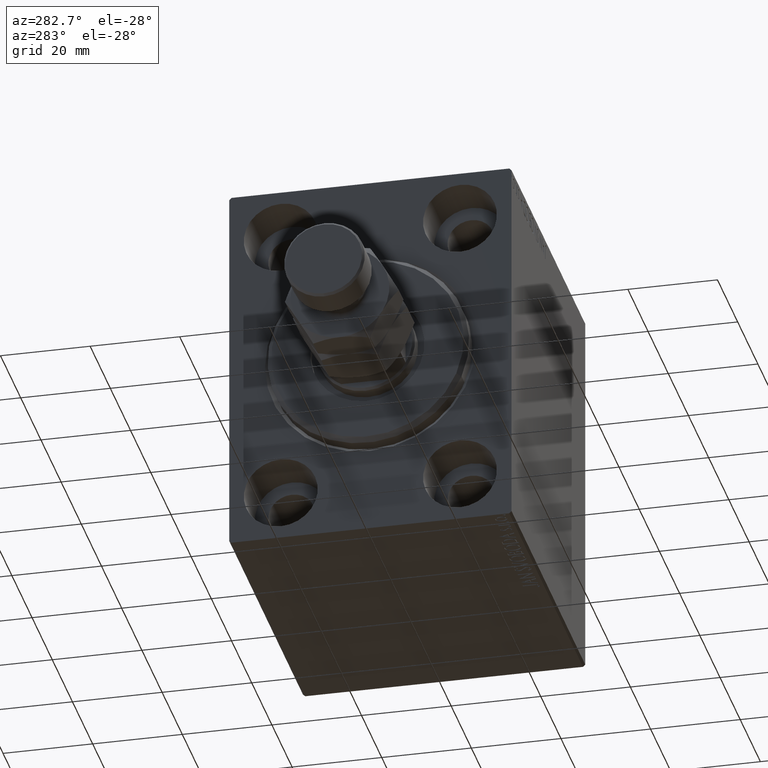
[diagram: clean part render]
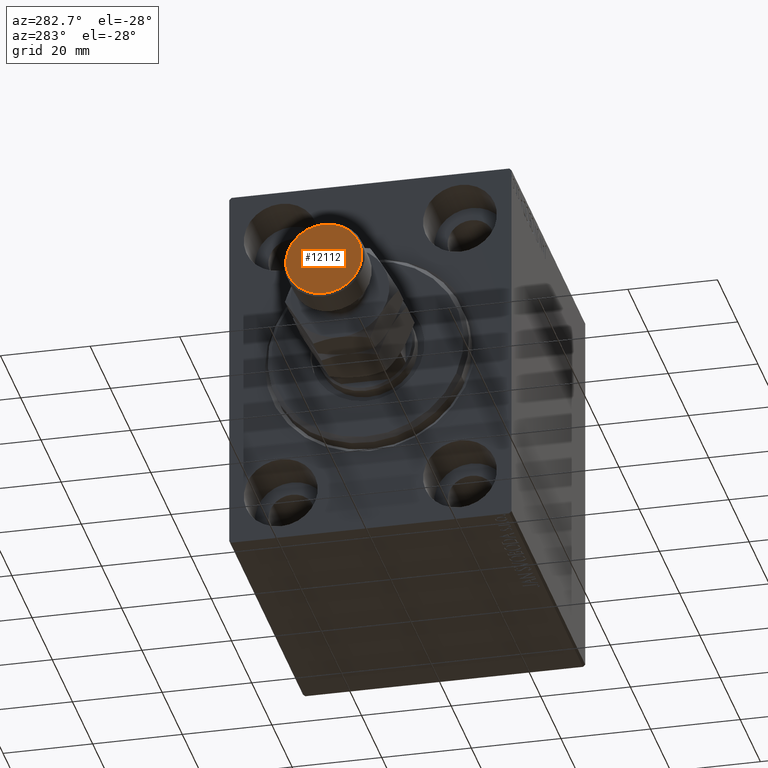
[diagram: same view with one face highlighted and labeled with its STEP entity id]
A machine part, auxiliary view. The second image highlights one B-rep face of the part: STEP entity #12112.
In plain terms, the highlighted planar face has unit normal (-1, 0, 0).
Its self-contained STEP definition (entity closure, byte-faithful):
#2518 = CARTESIAN_POINT ( 'NONE',  ( 0.000000000000000000, 0.000000000000000000, 35.00000000000000000 ) ) ;
#9428 = DIRECTION ( 'NONE',  ( 1.000000000000000000, 0.000000000000000000, 0.000000000000000000 ) ) ;
#10169 = VERTEX_POINT ( 'NONE', #12416 ) ;
#10342 = ORIENTED_EDGE ( 'NONE', *, *, #18487, .T. ) ;
#11153 = DIRECTION ( 'NONE',  ( 1.000000000000000000, 0.000000000000000000, 0.000000000000000000 ) ) ;
#12112 = ADVANCED_FACE ( 'NONE', ( #15824 ), #20155, .T. ) ;
#12416 = CARTESIAN_POINT ( 'NONE',  ( -8.499999999999992895, 0.000000000000000000, 35.00000000000000000 ) ) ;
#13403 = AXIS2_PLACEMENT_3D ( 'NONE', #41055, #33938, #22922 ) ;
#14420 = EDGE_CURVE ( 'NONE', #44281, #10169, #44972, .T. ) ;
#15730 = DIRECTION ( 'NONE',  ( 0.000000000000000000, 0.000000000000000000, 1.000000000000000000 ) ) ;
#15824 = FACE_OUTER_BOUND ( 'NONE', #41840, .T. ) ;
#17405 = ORIENTED_EDGE ( 'NONE', *, *, #14420, .T. ) ;
#18487 = EDGE_CURVE ( 'NONE', #10169, #44281, #38379, .T. ) ;
#19170 = CARTESIAN_POINT ( 'NONE',  ( 0.000000000000000000, 0.000000000000000000, 35.00000000000000000 ) ) ;
#20155 = PLANE ( 'NONE',  #13403 ) ;
#20194 = DIRECTION ( 'NONE',  ( 0.000000000000000000, 0.000000000000000000, 1.000000000000000000 ) ) ;
#22922 = DIRECTION ( 'NONE',  ( 1.000000000000000000, 0.000000000000000000, -0.000000000000000000 ) ) ;
#28844 = AXIS2_PLACEMENT_3D ( 'NONE', #2518, #20194, #9428 ) ;
#28847 = AXIS2_PLACEMENT_3D ( 'NONE', #19170, #15730, #11153 ) ;
#33938 = DIRECTION ( 'NONE',  ( 0.000000000000000000, 0.000000000000000000, 1.000000000000000000 ) ) ;
#35043 = CARTESIAN_POINT ( 'NONE',  ( 8.499999999999992895, 1.071565949253933532E-15, 35.00000000000000000 ) ) ;
#38379 = CIRCLE ( 'NONE', #28844, 8.499999999999992895 ) ;
#41055 = CARTESIAN_POINT ( 'NONE',  ( 0.000000000000000000, 0.000000000000000000, 35.00000000000000000 ) ) ;
#41840 = EDGE_LOOP ( 'NONE', ( #10342, #17405 ) ) ;
#44281 = VERTEX_POINT ( 'NONE', #35043 ) ;
#44972 = CIRCLE ( 'NONE', #28847, 8.499999999999992895 ) ;